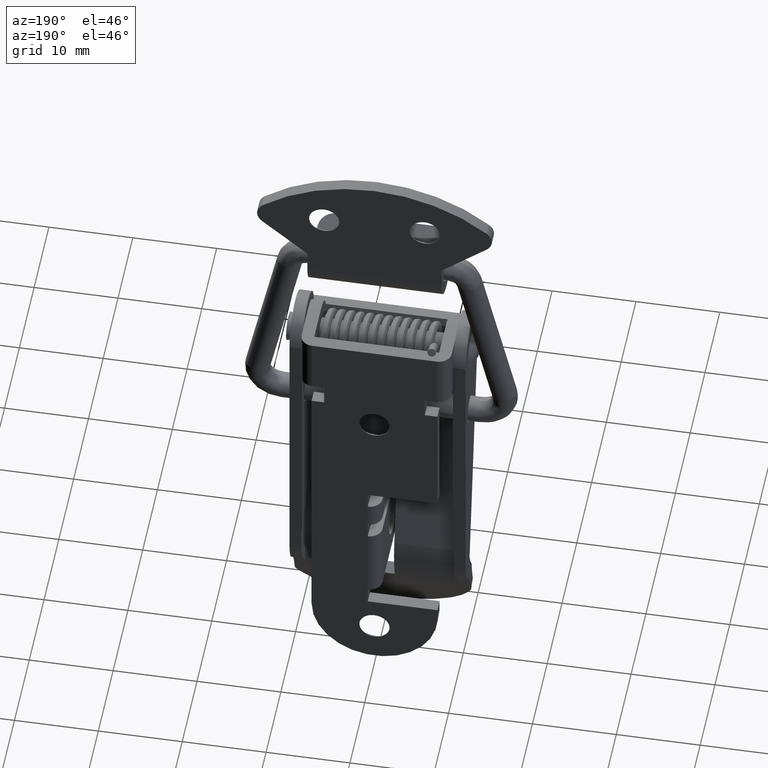
[diagram: clean part render]
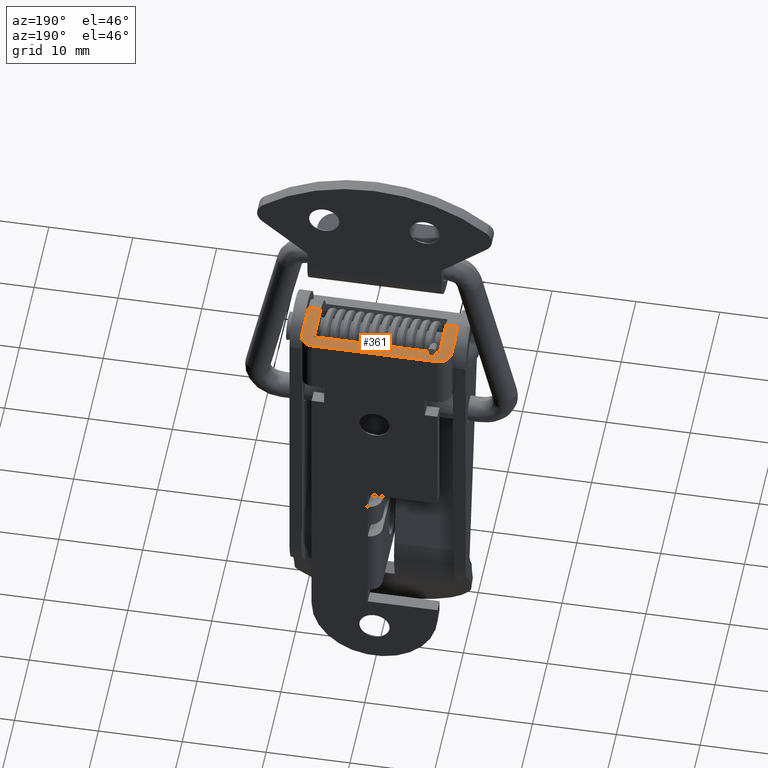
[diagram: same view with one face highlighted and labeled with its STEP entity id]
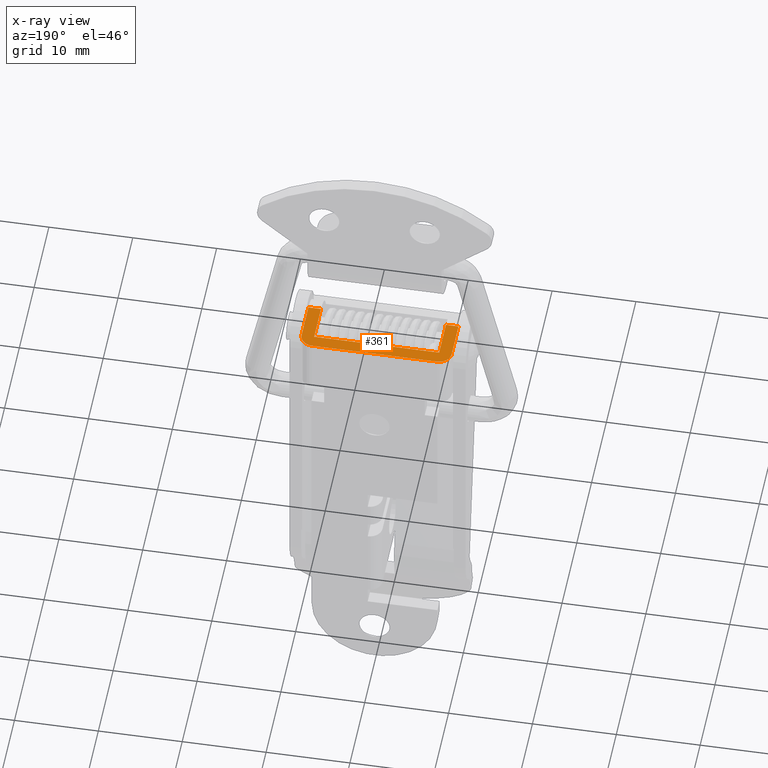
[diagram: x-ray of the same camera — body ghosted, the highlighted face saturated]
A machine part, auxiliary view. The second image highlights one B-rep face of the part: STEP entity #361.
The next image is the same camera in x-ray: the body ghosted, the highlighted face saturated — about 0% of this face is hidden behind the body in this view.
In plain terms, the highlighted planar face has unit normal (0, 0, 1).
Its self-contained STEP definition (entity closure, byte-faithful):
#361=ADVANCED_FACE('',(#1458),#1457,.T.);
#1457=PLANE('',#33195);
#1458=FACE_OUTER_BOUND('',#33196,.T.);
#33192=CARTESIAN_POINT('',(-3.31000000000E+00,-1.07400000000E+01,-1.15000000000E+01));
#33193=DIRECTION('',(0.00000000000E+00,0.00000000000E+00,1.00000000000E+00));
#33194=DIRECTION('',(1.00000000000E+00,0.00000000000E+00,0.00000000000E+00));
#33195=AXIS2_PLACEMENT_3D('',#33192,#33193,#33194);
#33196=EDGE_LOOP('',(#34351,#34352,#34353,#34354,#34355,#34356,#34357,#34358,#34359,#34360));
#34351=ORIENTED_EDGE('',*,*,#35041,.F.);
#34352=ORIENTED_EDGE('',*,*,#34967,.T.);
#34353=ORIENTED_EDGE('',*,*,#35042,.T.);
#34354=ORIENTED_EDGE('',*,*,#35039,.T.);
#34355=ORIENTED_EDGE('',*,*,#34962,.F.);
#34356=ORIENTED_EDGE('',*,*,#35021,.T.);
#34357=ORIENTED_EDGE('',*,*,#34954,.T.);
#34358=ORIENTED_EDGE('',*,*,#35043,.T.);
#34359=ORIENTED_EDGE('',*,*,#35044,.F.);
#34360=ORIENTED_EDGE('',*,*,#34971,.T.);
#34954=EDGE_CURVE('',#36751,#36743,#36752,.T.);
#34962=EDGE_CURVE('',#36800,#36785,#36807,.T.);
#34967=EDGE_CURVE('',#36842,#36835,#36843,.T.);
#34971=EDGE_CURVE('',#36870,#36863,#36871,.T.);
#35021=EDGE_CURVE('',#36800,#36751,#37197,.T.);
#35039=EDGE_CURVE('',#37317,#36785,#37318,.T.);
#35041=EDGE_CURVE('',#36842,#36863,#37330,.T.);
#35042=EDGE_CURVE('',#36835,#37317,#37336,.T.);
#35043=EDGE_CURVE('',#36743,#37342,#37343,.T.);
#35044=EDGE_CURVE('',#36870,#37342,#37349,.T.);
#36743=VERTEX_POINT('',#39806);
#36751=VERTEX_POINT('',#39812);
#36752=LINE('',#39813,#39814);
#36785=VERTEX_POINT('',#39833);
#36800=VERTEX_POINT('',#39843);
#36807=LINE('',#39847,#39848);
#36835=VERTEX_POINT('',#39866);
#36842=VERTEX_POINT('',#39870);
#36843=CIRCLE('',#39874,1.50000000000E+00);
#36863=VERTEX_POINT('',#39884);
#36870=VERTEX_POINT('',#39888);
#36871=CIRCLE('',#39892,1.50000000000E+00);
#37197=LINE('',#40068,#40069);
#37317=VERTEX_POINT('',#40144);
#37318=LINE('',#40145,#40146);
#37330=LINE('',#40152,#40153);
#37336=LINE('',#40155,#40156);
#37342=VERTEX_POINT('',#40158);
#37343=LINE('',#40159,#40160);
#37349=LINE('',#40162,#40163);
#39806=CARTESIAN_POINT('',(-2.70000000000E+00,-7.45000000000E+00,-1.15000000000E+01));
#39812=CARTESIAN_POINT('',(1.90000000000E+00,-7.45000000000E+00,-1.15000000000E+01));
#39813=CARTESIAN_POINT('',(1.90000000000E+00,-7.45000000000E+00,-1.15000000000E+01));
#39814=VECTOR('',#39815,4.60000000000E+00);
#39815=DIRECTION('',(-1.00000000000E+00,0.00000000000E+00,0.00000000000E+00));
#39833=CARTESIAN_POINT('',(-2.70000000000E+00,7.45000000000E+00,-1.15000000000E+01));
#39843=CARTESIAN_POINT('',(1.90000000000E+00,7.45000000000E+00,-1.15000000000E+01));
#39847=CARTESIAN_POINT('',(1.90000000000E+00,7.45000000000E+00,-1.15000000000E+01));
#39848=VECTOR('',#39849,4.60000000000E+00);
#39849=DIRECTION('',(-1.00000000000E+00,0.00000000000E+00,0.00000000000E+00));
#39866=CARTESIAN_POINT('',(1.90000000000E+00,8.95000000000E+00,-1.15000000000E+01));
#39870=CARTESIAN_POINT('',(3.40000000000E+00,7.45000000000E+00,-1.15000000000E+01));
#39871=CARTESIAN_POINT('',(1.90000000000E+00,7.45000000000E+00,-1.15000000000E+01));
#39872=DIRECTION('',(2.36847578587E-15,-4.18691322316E-16,1.00000000000E+00));
#39873=DIRECTION('',(-1.00000000000E+00,-0.00000000000E+00,2.36847578587E-15));
#39874=AXIS2_PLACEMENT_3D('',#39871,#39872,#39873);
#39884=CARTESIAN_POINT('',(3.40000000000E+00,-7.45000000000E+00,-1.15000000000E+01));
#39888=CARTESIAN_POINT('',(1.90000000000E+00,-8.95000000000E+00,-1.15000000000E+01));
#39889=CARTESIAN_POINT('',(1.90000000000E+00,-7.45000000000E+00,-1.15000000000E+01));
#39890=DIRECTION('',(-4.18691322316E-16,-2.36847578587E-15,1.00000000000E+00));
#39891=DIRECTION('',(-0.00000000000E+00,1.00000000000E+00,2.36847578587E-15));
#39892=AXIS2_PLACEMENT_3D('',#39889,#39890,#39891);
#40068=CARTESIAN_POINT('',(1.90000000000E+00,7.45000000000E+00,-1.15000000000E+01));
#40069=VECTOR('',#40070,1.49000000000E+01);
#40070=DIRECTION('',(0.00000000000E+00,-1.00000000000E+00,0.00000000000E+00));
#40144=CARTESIAN_POINT('',(-2.70000000000E+00,8.95000000000E+00,-1.15000000000E+01));
#40145=CARTESIAN_POINT('',(-2.70000000000E+00,8.95000000000E+00,-1.15000000000E+01));
#40146=VECTOR('',#40147,1.50000000000E+00);
#40147=DIRECTION('',(0.00000000000E+00,-1.00000000000E+00,0.00000000000E+00));
#40152=CARTESIAN_POINT('',(3.40000000000E+00,7.45000000000E+00,-1.15000000000E+01));
#40153=VECTOR('',#40154,1.49000000000E+01);
#40154=DIRECTION('',(0.00000000000E+00,-1.00000000000E+00,0.00000000000E+00));
#40155=CARTESIAN_POINT('',(1.90000000000E+00,8.95000000000E+00,-1.15000000000E+01));
#40156=VECTOR('',#40157,4.60000000000E+00);
#40157=DIRECTION('',(-1.00000000000E+00,0.00000000000E+00,0.00000000000E+00));
#40158=CARTESIAN_POINT('',(-2.70000000000E+00,-8.95000000000E+00,-1.15000000000E+01));
#40159=CARTESIAN_POINT('',(-2.70000000000E+00,-7.45000000000E+00,-1.15000000000E+01));
#40160=VECTOR('',#40161,1.50000000000E+00);
#40161=DIRECTION('',(0.00000000000E+00,-1.00000000000E+00,0.00000000000E+00));
#40162=CARTESIAN_POINT('',(1.90000000000E+00,-8.95000000000E+00,-1.15000000000E+01));
#40163=VECTOR('',#40164,4.60000000000E+00);
#40164=DIRECTION('',(-1.00000000000E+00,0.00000000000E+00,0.00000000000E+00));